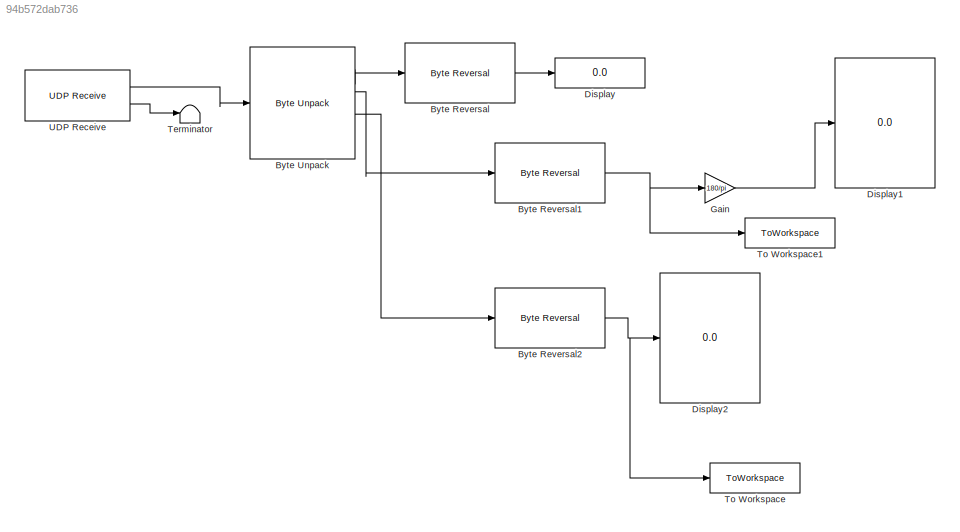
MODEL slx_94b572dab736
KIND model
CONFIG AbsTol = auto
CONFIG EnableMultiTasking = off
CONFIG FixedStep = 1/500
CONFIG MaxStep = auto
CONFIG MinStep = auto
CONFIG RelTol = 1e-3
CONFIG SampleTimeConstraint = Unconstrained
CONFIG Solver = FixedStepDiscrete
CONFIG SolverName = FixedStepDiscrete
CONFIG StartTime = 0.0
CONFIG StopTime = inf
BLOCK [Reference] Byte Reversal  REF=etargetslib/Byte Reversal
  Ports = [1, 1]
  SourceBlock = etargetslib/Byte Reversal
  SourceProductBaseCode = ME
  SourceProductName = MATLAB Coder
  SourceType = Byte Reversal
BLOCK [Reference] Byte Reversal1  REF=etargetslib/Byte Reversal
  Ports = [1, 1]
  SourceBlock = etargetslib/Byte Reversal
  SourceProductBaseCode = ME
  SourceProductName = MATLAB Coder
  SourceType = Byte Reversal
BLOCK [Reference] Byte Reversal2  REF=etargetslib/Byte Reversal
  Ports = [1, 1]
  SourceBlock = etargetslib/Byte Reversal
  SourceProductBaseCode = ME
  SourceProductName = MATLAB Coder
  SourceType = Byte Reversal
BLOCK [Reference] Byte Unpack  REF=etargetslib/Byte Unpack
  Ports = [1, 4]
  SourceBlock = etargetslib/Byte Unpack
  SourceProductBaseCode = ME
  SourceProductName = MATLAB Coder
  SourceType = Byte Unpack
BLOCK [Display] Display
  Decimation = 1
  Ports = [1]
BLOCK [Display] Display1
  Decimation = 1
  Ports = [1]
BLOCK [Display] Display2
  Decimation = 1
  Ports = [1]
BLOCK [Gain] Gain
  Gain = 180/pi
  OutDataTypeStr = Inherit: Inherit via internal rule
  ParamDataTypeStr = Inherit: Inherit via internal rule
  SaturateOnIntegerOverflow = off
BLOCK [Terminator] Terminator
BLOCK [ToWorkspace] To Workspace
  FixptAsFi = on
  MaxDataPoints = inf
  Ports = [1]
  SampleTime = -1
  SaveFormat = Timeseries
  VariableName = hitrost
BLOCK [ToWorkspace] To Workspace1
  FixptAsFi = on
  MaxDataPoints = inf
  Ports = [1]
  SampleTime = -1
  SaveFormat = Timeseries
  VariableName = lega
BLOCK [Reference] UDP Receive  REF=dspnetwork/UDP Receive
  Ports = [0, 2]
  SourceBlock = dspnetwork/UDP Receive
  SourceProductBaseCode = SL
  SourceProductName = Simulink
  SourceType = UDP Receive
NET Byte Reversal1:1 -> Gain:1, To Workspace1:1
NET Byte Reversal2:1 -> Display2:1, To Workspace:1
LINE Byte Reversal:1 -> Display:1
LINE Byte Unpack:1 -> Byte Reversal:1
LINE Byte Unpack:2 -> Byte Reversal1:1
LINE Byte Unpack:3 -> Byte Reversal2:1
LINE Gain:1 -> Display1:1
LINE UDP Receive:1 -> Byte Unpack:1
LINE UDP Receive:2 -> Terminator:1
note: NET lines group one-source signal fan-out (src -> all destinations, sorted); 1:1 wires keep LINE
